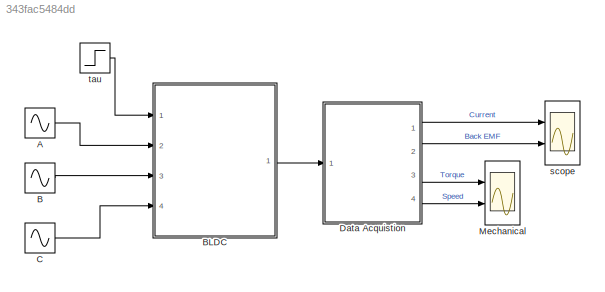
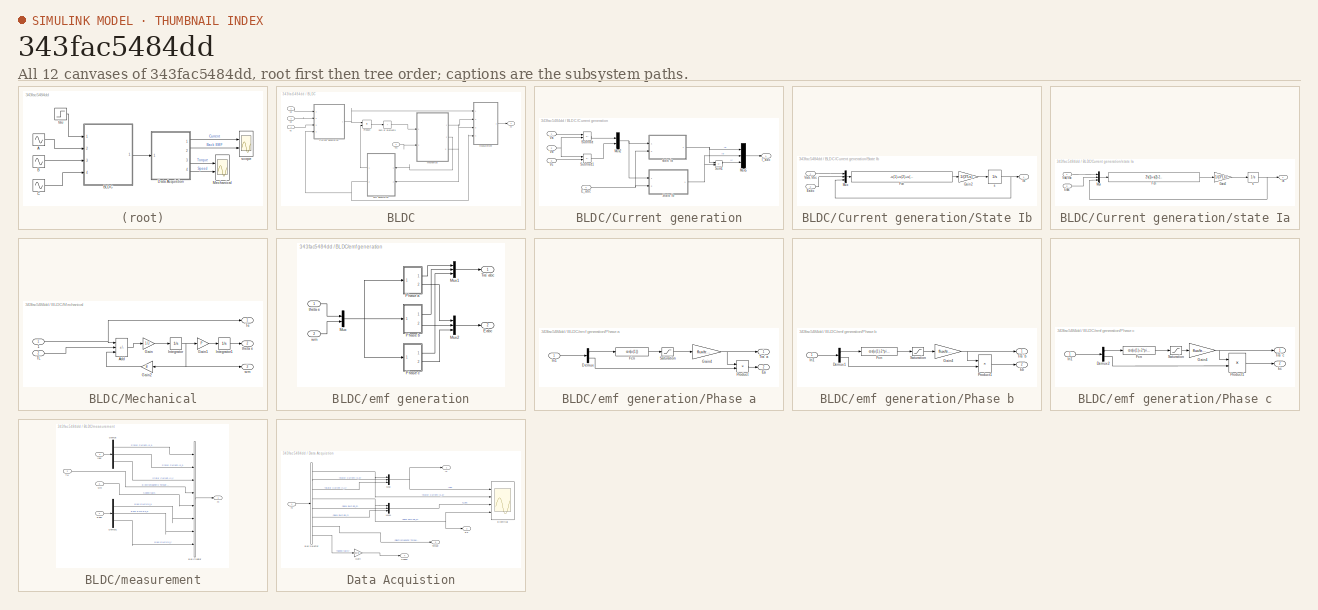
[diagram: thumbnail index - all 12 canvases of the model, root first then tree order]
MODEL slx_343fac5484dd
KIND model
CONFIG AbsTol = auto
CONFIG EnableMultiTasking = off
CONFIG FixedStep = auto
CONFIG MaxStep = auto
CONFIG MinStep = auto
CONFIG RelTol = 1e-3
CONFIG SampleTimeConstraint = Unconstrained
CONFIG SolverName = VariableStepAuto
CONFIG StartTime = 0.0
CONFIG StopTime = 1
WORKSPACE source: mxarray member
WORKSPACE Ts: Simulink.Parameter (value not decoded)
WORKSPACE flux: Simulink.Parameter (value not decoded)
WORKSPACE trap: Simulink.Parameter (value not decoded)
BLOCK [Sin] A
  Amplitude = 220*sqrt(2)
  Frequency = 2*pi*50
  Ports = [0, 1]
  SampleTime = Ts
BLOCK [Sin] B
  Amplitude = 220*sqrt(2)
  Frequency = 2*pi*50
  Phase = -2*pi/3
  Ports = [0, 1]
  SampleTime = Ts
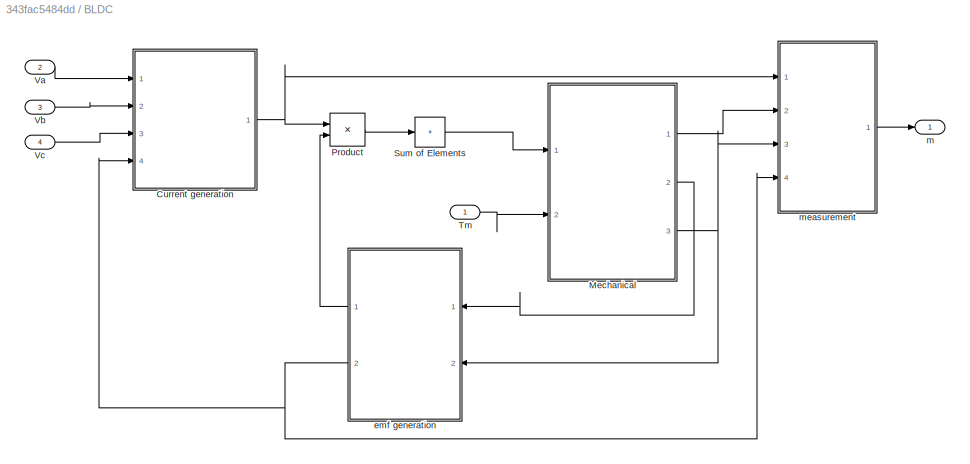
BLOCK [SubSystem] BLDC
  Ports = [4, 1]
  RequestExecContextInheritance = off
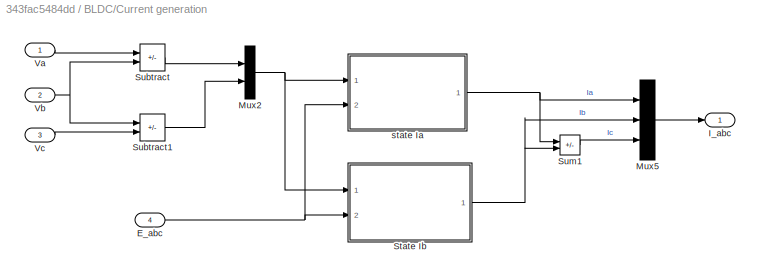
BLOCK [SubSystem] BLDC/Current generation
  Ports = [4, 1]
  RequestExecContextInheritance = off
BLOCK [Inport] BLDC/Current generation/E_abc
  Port = 4
BLOCK [Outport] BLDC/Current generation/I_abc
BLOCK [Mux] BLDC/Current generation/Mux2
  DisplayOption = bar
  Inputs = 2
  Ports = [2, 1]
BLOCK [Mux] BLDC/Current generation/Mux5
  DisplayOption = bar
  Inputs = 3
  Ports = [3, 1]
BLOCK [SubSystem] BLDC/Current generation/State Ib
  Ports = [2, 1]
  RequestExecContextInheritance = off
BLOCK [Inport] BLDC/Current generation/State Ib/Eabc
  Port = 2
BLOCK [Fcn] BLDC/Current generation/State Ib/Fcn
  Expr = -u(1)+u(2)+u(3)-2*u(4)+u(5)-3*Rs*u(6)
BLOCK [Gain] BLDC/Current generation/State Ib/Gain2
  Gain = 1/(3*Ls)
  OutDataTypeStr = Inherit: Same as input
  ParamDataTypeStr = Inherit: Same as input
  SaturateOnIntegerOverflow = on
BLOCK [Outport] BLDC/Current generation/State Ib/Ib
BLOCK [Mux] BLDC/Current generation/State Ib/Mux
  DisplayOption = bar
  Inputs = 3
  Ports = [3, 1]
BLOCK [Inport] BLDC/Current generation/State Ib/Vab,Vbc
BLOCK [Integrator] BLDC/Current generation/State Ib/s 
  Ports = [1, 1]
BLOCK [Sum] BLDC/Current generation/Subtract
  IconShape = rectangular
  Inputs = +-
  Ports = [2, 1]
BLOCK [Sum] BLDC/Current generation/Subtract1
  IconShape = rectangular
  Inputs = +-
  Ports = [2, 1]
BLOCK [Sum] BLDC/Current generation/Sum1
  IconShape = rectangular
  Inputs = --
  Ports = [2, 1]
  SaturateOnIntegerOverflow = on
BLOCK [Inport] BLDC/Current generation/Va
BLOCK [Inport] BLDC/Current generation/Vb
  Port = 2
BLOCK [Inport] BLDC/Current generation/Vc
  Port = 3
BLOCK [SubSystem] BLDC/Current generation/state Ia
  Ports = [2, 1]
  RequestExecContextInheritance = off
BLOCK [Inport] BLDC/Current generation/state Ia/Eabc
  Port = 2
BLOCK [Fcn] BLDC/Current generation/state Ia/Fcn
  Expr = 2*u(1)+u(2)-2*u(3)+u(4)+u(5)-3*Rs*u(6)
BLOCK [Gain] BLDC/Current generation/state Ia/Gain2
  Gain = 1/(3*Ls)
  OutDataTypeStr = Inherit: Same as input
  ParamDataTypeStr = Inherit: Same as input
  SaturateOnIntegerOverflow = on
BLOCK [Outport] BLDC/Current generation/state Ia/Ia
BLOCK [Mux] BLDC/Current generation/state Ia/Mux
  DisplayOption = bar
  Inputs = 3
  Ports = [3, 1]
BLOCK [Inport] BLDC/Current generation/state Ia/Vab,Vbc
BLOCK [Integrator] BLDC/Current generation/state Ia/s 
  Ports = [1, 1]
BLOCK [SubSystem] BLDC/Mechanical
  Ports = [2, 3]
  RequestExecContextInheritance = off
BLOCK [Inport] BLDC/Mechanical/1
BLOCK [Sum] BLDC/Mechanical/Add
  IconShape = rectangular
  Inputs = +--
  Ports = [3, 1]
BLOCK [Gain] BLDC/Mechanical/Gain
  Gain = 1/J
BLOCK [Gain] BLDC/Mechanical/Gain1
  Gain = P
BLOCK [Gain] BLDC/Mechanical/Gain2
  Gain = B
  NameLocation = top
BLOCK [Integrator] BLDC/Mechanical/Integrator
  Ports = [1, 1]
BLOCK [Integrator] BLDC/Mechanical/Integrator1
  Ports = [1, 1]
BLOCK [Inport] BLDC/Mechanical/TL
  Port = 2
BLOCK [Outport] BLDC/Mechanical/Te
BLOCK [Outport] BLDC/Mechanical/theta e
  Port = 2
BLOCK [Outport] BLDC/Mechanical/wm
  Port = 3
BLOCK [Product] BLDC/Product
  OutDataTypeStr = Inherit: Same as first input
  Ports = [2, 1]
  SaturateOnIntegerOverflow = on
BLOCK [Sum] BLDC/Sum of Elements
  IconShape = rectangular
  Inputs = +
  Ports = [1, 1]
BLOCK [Inport] BLDC/Tm
BLOCK [Inport] BLDC/Va
  Port = 2
BLOCK [Inport] BLDC/Vb
  Port = 3
BLOCK [Inport] BLDC/Vc
  Port = 4
BLOCK [SubSystem] BLDC/emf generation
  Ports = [2, 2]
  RequestExecContextInheritance = off
BLOCK [Outport] BLDC/emf generation/Eabc
  Port = 2
BLOCK [Mux] BLDC/emf generation/Mux
  DisplayOption = bar
  Inputs = 2
  Ports = [2, 1]
BLOCK [Mux] BLDC/emf generation/Mux1
  DisplayOption = bar
  Inputs = 3
  Ports = [3, 1]
BLOCK [Mux] BLDC/emf generation/Mux2
  DisplayOption = bar
  Inputs = 3
  Ports = [3, 1]
BLOCK [SubSystem] BLDC/emf generation/Phase a
  Ports = [1, 2]
  RequestExecContextInheritance = off
BLOCK [Demux] BLDC/emf generation/Phase a/Demux
  Outputs = 2
  Ports = [1, 2]
BLOCK [Outport] BLDC/emf generation/Phase a/Ea
  Port = 2
BLOCK [Fcn] BLDC/emf generation/Phase a/Fcn
  Expr = cos(u(1))
BLOCK [Gain] BLDC/emf generation/Phase a/Gain4
  Gain = flux/trap
  OutDataTypeStr = Inherit: Same as input
  ParamDataTypeStr = Inherit: Same as input
  SaturateOnIntegerOverflow = on
BLOCK [Inport] BLDC/emf generation/Phase a/In1
BLOCK [Product] BLDC/emf generation/Phase a/Product
  Ports = [2, 1]
BLOCK [Saturate] BLDC/emf generation/Phase a/Saturation
  LowerLimit = -trap
  UpperLimit = trap
BLOCK [Outport] BLDC/emf generation/Phase a/Tra' a
BLOCK [SubSystem] BLDC/emf generation/Phase b
  Ports = [1, 2]
  RequestExecContextInheritance = off
BLOCK [Demux] BLDC/emf generation/Phase b/Demux1
  Outputs = 2
  Ports = [1, 2]
BLOCK [Outport] BLDC/emf generation/Phase b/Eb
  Port = 2
BLOCK [Fcn] BLDC/emf generation/Phase b/Fcn
  Expr = cos(u(1)-2*pi/3)
BLOCK [Gain] BLDC/emf generation/Phase b/Gain4
  Gain = flux/trap
  OutDataTypeStr = Inherit: Same as input
  ParamDataTypeStr = Inherit: Same as input
  SaturateOnIntegerOverflow = on
BLOCK [Inport] BLDC/emf generation/Phase b/In1
BLOCK [Product] BLDC/emf generation/Phase b/Product1
  OutDataTypeStr = Inherit: Same as first input
  Ports = [2, 1]
  SaturateOnIntegerOverflow = on
BLOCK [Saturate] BLDC/emf generation/Phase b/Saturation
  LowerLimit = -trap
  UpperLimit = trap
BLOCK [Outport] BLDC/emf generation/Phase b/Tra' b
BLOCK [SubSystem] BLDC/emf generation/Phase c
  Ports = [1, 2]
  RequestExecContextInheritance = off
BLOCK [Demux] BLDC/emf generation/Phase c/Demux2
  Outputs = 2
  Ports = [1, 2]
BLOCK [Outport] BLDC/emf generation/Phase c/Ec
  Port = 2
BLOCK [Fcn] BLDC/emf generation/Phase c/Fcn
  Expr = cos(u(1)+2*pi/3)
BLOCK [Gain] BLDC/emf generation/Phase c/Gain4
  Gain = flux/trap
  OutDataTypeStr = Inherit: Same as input
  ParamDataTypeStr = Inherit: Same as input
  SaturateOnIntegerOverflow = on
BLOCK [Inport] BLDC/emf generation/Phase c/In1
BLOCK [Product] BLDC/emf generation/Phase c/Product1
  OutDataTypeStr = Inherit: Same as first input
  Ports = [2, 1]
  SaturateOnIntegerOverflow = on
BLOCK [Saturate] BLDC/emf generation/Phase c/Saturation
  LowerLimit = -trap
  UpperLimit = trap
BLOCK [Outport] BLDC/emf generation/Phase c/Tra' c
BLOCK [Outport] BLDC/emf generation/Tra' abc
BLOCK [Inport] BLDC/emf generation/theta e
BLOCK [Inport] BLDC/emf generation/wm
  Port = 2
BLOCK [Outport] BLDC/m
BLOCK [SubSystem] BLDC/measurement
  Ports = [4, 1]
  RequestExecContextInheritance = off
BLOCK [BusCreator] BLDC/measurement/Bus Creator
  DisplayOption = bar
  InheritFromInputs = on
  Inputs = 8
  Ports = [8, 1]
BLOCK [Demux] BLDC/measurement/Demux
  Outputs = 3
  Ports = [1, 3]
BLOCK [Demux] BLDC/measurement/Demux1
  Outputs = 3
  Ports = [1, 3]
BLOCK [Inport] BLDC/measurement/Eabc
  Port = 4
BLOCK [Inport] BLDC/measurement/Iabc
BLOCK [Inport] BLDC/measurement/Te
  Port = 2
BLOCK [Outport] BLDC/measurement/m
BLOCK [Inport] BLDC/measurement/wm
  Port = 3
BLOCK [Sin] C
  Amplitude = 220*sqrt(2)
  Frequency = 2*pi*50
  Phase = 2*pi/3
  Ports = [0, 1]
  SampleTime = Ts
BLOCK [SubSystem] Data Acquistion
  Ports = [1, 4]
  RequestExecContextInheritance = off
BLOCK [BusSelector] Data Acquistion/Bus Selector
  OutputSignals = Stator Current-Is_a,Stator Current-Is_b,Stator Current-Is_c,Back EMF-Eb_a,Back EMF-Eb_b,Back EMF-Eb_c,Electromagnetic Torque-Nm,Speed-rad/s
  Ports = [1, 8]
BLOCK [Outport] Data Acquistion/Eb
  Port = 2
BLOCK [Scope] Data Acquistion/Electrical
  Floating = off
  NumInputPorts = 4
  Ports = [4]
  ScopeSpecificationString = Simulink.scopes.TimeScopeBlockCfg('CurrentConfiguration', extmgr.ConfigurationSet(extmgr.Configuration('Core','General UI',true),extmgr.Configuration('Core','Source UI',true),extmgr.Configuration('Sources','WiredSimulink',true,'DataLoggingVariableName','ScopeData3','DataLoggingSaveFormat','StructureWithTime','DataLoggingDecimation','1','DataLoggingDecimateData',true),extmgr.Configuration('Visuals'...<+3714ch>
BLOCK [Gain] Data Acquistion/Gain
  Gain = 30/pi
BLOCK [Outport] Data Acquistion/Is
BLOCK [Mux] Data Acquistion/Mux
  DisplayOption = bar
  Inputs = 3
  Ports = [3, 1]
BLOCK [Mux] Data Acquistion/Mux1
  DisplayOption = bar
  Inputs = 3
  Ports = [3, 1]
BLOCK [Outport] Data Acquistion/Speed
  Port = 4
BLOCK [Outport] Data Acquistion/Torque
  Port = 3
BLOCK [Inport] Data Acquistion/m
BLOCK [Scope] Mechanical
  Floating = off
  NumInputPorts = 2
  Ports = [2]
  ScopeSpecificationString = Simulink.scopes.TimeScopeBlockCfg('CurrentConfiguration', extmgr.ConfigurationSet(extmgr.Configuration('Core','General UI',true),extmgr.Configuration('Core','Source UI',true),extmgr.Configuration('Sources','WiredSimulink',true,'DataLoggingVariableName','ScopeData1','DataLoggingSaveFormat','StructureWithTime','DataLoggingDecimation','1','DataLoggingDecimateData',true),extmgr.Configuration('Visuals'...<+2321ch>
BLOCK [Scope] scope
  Floating = off
  NumInputPorts = 2
  Ports = [2]
  ScopeSpecificationString = Simulink.scopes.TimeScopeBlockCfg('CurrentConfiguration', extmgr.ConfigurationSet(extmgr.Configuration('Core','General UI',true),extmgr.Configuration('Core','Source UI',true),extmgr.Configuration('Sources','WiredSimulink',true,'DataLoggingSaveFormat','StructureWithTime','DataLoggingDecimation','1','DataLoggingDecimateData',true,'DataLoggingVariableName','ScopeData2'),extmgr.Configuration('Visuals'...<+2360ch>
BLOCK [Step] tau
  After = 10
  SampleTime = 0
  Time = 0.5
LINE A:1 -> BLDC:2
LINE B:1 -> BLDC:3
NET BLDC/Current generation/E_abc:1 -> BLDC/Current generation/State Ib:2, BLDC/Current generation/state Ia:2
NET BLDC/Current generation/Mux2:1 -> BLDC/Current generation/State Ib:1, BLDC/Current generation/state Ia:1
LINE BLDC/Current generation/Mux5:1 -> BLDC/Current generation/I_abc:1
LINE BLDC/Current generation/State Ib/Eabc:1 -> BLDC/Current generation/State Ib/Mux:2
LINE BLDC/Current generation/State Ib/Fcn:1 -> BLDC/Current generation/State Ib/Gain2:1
LINE BLDC/Current generation/State Ib/Gain2:1 -> BLDC/Current generation/State Ib/s :1
LINE BLDC/Current generation/State Ib/Mux:1 -> BLDC/Current generation/State Ib/Fcn:1
LINE BLDC/Current generation/State Ib/Vab,Vbc:1 -> BLDC/Current generation/State Ib/Mux:1
NET BLDC/Current generation/State Ib/s :1 -> BLDC/Current generation/State Ib/Ib:1, BLDC/Current generation/State Ib/Mux:3
NET BLDC/Current generation/State Ib:1 -> BLDC/Current generation/Mux5:2, BLDC/Current generation/Sum1:2
LINE BLDC/Current generation/Subtract1:1 -> BLDC/Current generation/Mux2:2
LINE BLDC/Current generation/Subtract:1 -> BLDC/Current generation/Mux2:1
LINE BLDC/Current generation/Sum1:1 -> BLDC/Current generation/Mux5:3
LINE BLDC/Current generation/Va:1 -> BLDC/Current generation/Subtract:1
NET BLDC/Current generation/Vb:1 -> BLDC/Current generation/Subtract1:1, BLDC/Current generation/Subtract:2
LINE BLDC/Current generation/Vc:1 -> BLDC/Current generation/Subtract1:2
LINE BLDC/Current generation/state Ia/Eabc:1 -> BLDC/Current generation/state Ia/Mux:2
LINE BLDC/Current generation/state Ia/Fcn:1 -> BLDC/Current generation/state Ia/Gain2:1
LINE BLDC/Current generation/state Ia/Gain2:1 -> BLDC/Current generation/state Ia/s :1
LINE BLDC/Current generation/state Ia/Mux:1 -> BLDC/Current generation/state Ia/Fcn:1
LINE BLDC/Current generation/state Ia/Vab,Vbc:1 -> BLDC/Current generation/state Ia/Mux:1
NET BLDC/Current generation/state Ia/s :1 -> BLDC/Current generation/state Ia/Ia:1, BLDC/Current generation/state Ia/Mux:3
NET BLDC/Current generation/state Ia:1 -> BLDC/Current generation/Mux5:1, BLDC/Current generation/Sum1:1
NET BLDC/Current generation:1 -> BLDC/Product:1, BLDC/measurement:1
NET BLDC/Mechanical/1:1 -> BLDC/Mechanical/Add:1, BLDC/Mechanical/Te:1
LINE BLDC/Mechanical/Add:1 -> BLDC/Mechanical/Gain:1
LINE BLDC/Mechanical/Gain1:1 -> BLDC/Mechanical/Integrator1:1
LINE BLDC/Mechanical/Gain2:1 -> BLDC/Mechanical/Add:3
LINE BLDC/Mechanical/Gain:1 -> BLDC/Mechanical/Integrator:1
LINE BLDC/Mechanical/Integrator1:1 -> BLDC/Mechanical/theta e:1
NET BLDC/Mechanical/Integrator:1 -> BLDC/Mechanical/Gain1:1, BLDC/Mechanical/Gain2:1, BLDC/Mechanical/wm:1
LINE BLDC/Mechanical/TL:1 -> BLDC/Mechanical/Add:2
LINE BLDC/Mechanical:1 -> BLDC/measurement:2
LINE BLDC/Mechanical:2 -> BLDC/emf generation:1
NET BLDC/Mechanical:3 -> BLDC/emf generation:2, BLDC/measurement:3
LINE BLDC/Product:1 -> BLDC/Sum of Elements:1
LINE BLDC/Sum of Elements:1 -> BLDC/Mechanical:1
LINE BLDC/Tm:1 -> BLDC/Mechanical:2
LINE BLDC/Va:1 -> BLDC/Current generation:1
LINE BLDC/Vb:1 -> BLDC/Current generation:2
LINE BLDC/Vc:1 -> BLDC/Current generation:3
LINE BLDC/emf generation/Mux1:1 -> BLDC/emf generation/Tra' abc:1
LINE BLDC/emf generation/Mux2:1 -> BLDC/emf generation/Eabc:1
NET BLDC/emf generation/Mux:1 -> BLDC/emf generation/Phase a:1, BLDC/emf generation/Phase b:1, BLDC/emf generation/Phase c:1
LINE BLDC/emf generation/Phase a/Demux:1 -> BLDC/emf generation/Phase a/Fcn:1
LINE BLDC/emf generation/Phase a/Demux:2 -> BLDC/emf generation/Phase a/Product:2
LINE BLDC/emf generation/Phase a/Fcn:1 -> BLDC/emf generation/Phase a/Saturation:1
NET BLDC/emf generation/Phase a/Gain4:1 -> BLDC/emf generation/Phase a/Product:1, BLDC/emf generation/Phase a/Tra' a:1
LINE BLDC/emf generation/Phase a/In1:1 -> BLDC/emf generation/Phase a/Demux:1
LINE BLDC/emf generation/Phase a/Product:1 -> BLDC/emf generation/Phase a/Ea:1
LINE BLDC/emf generation/Phase a/Saturation:1 -> BLDC/emf generation/Phase a/Gain4:1
LINE BLDC/emf generation/Phase a:1 -> BLDC/emf generation/Mux1:1
LINE BLDC/emf generation/Phase a:2 -> BLDC/emf generation/Mux2:1
LINE BLDC/emf generation/Phase b/Demux1:1 -> BLDC/emf generation/Phase b/Fcn:1
LINE BLDC/emf generation/Phase b/Demux1:2 -> BLDC/emf generation/Phase b/Product1:2
LINE BLDC/emf generation/Phase b/Fcn:1 -> BLDC/emf generation/Phase b/Saturation:1
NET BLDC/emf generation/Phase b/Gain4:1 -> BLDC/emf generation/Phase b/Product1:1, BLDC/emf generation/Phase b/Tra' b:1
LINE BLDC/emf generation/Phase b/In1:1 -> BLDC/emf generation/Phase b/Demux1:1
LINE BLDC/emf generation/Phase b/Product1:1 -> BLDC/emf generation/Phase b/Eb:1
LINE BLDC/emf generation/Phase b/Saturation:1 -> BLDC/emf generation/Phase b/Gain4:1
LINE BLDC/emf generation/Phase b:1 -> BLDC/emf generation/Mux1:2
LINE BLDC/emf generation/Phase b:2 -> BLDC/emf generation/Mux2:2
LINE BLDC/emf generation/Phase c/Demux2:1 -> BLDC/emf generation/Phase c/Fcn:1
LINE BLDC/emf generation/Phase c/Demux2:2 -> BLDC/emf generation/Phase c/Product1:2
LINE BLDC/emf generation/Phase c/Fcn:1 -> BLDC/emf generation/Phase c/Saturation:1
NET BLDC/emf generation/Phase c/Gain4:1 -> BLDC/emf generation/Phase c/Product1:1, BLDC/emf generation/Phase c/Tra' c:1
LINE BLDC/emf generation/Phase c/In1:1 -> BLDC/emf generation/Phase c/Demux2:1
LINE BLDC/emf generation/Phase c/Product1:1 -> BLDC/emf generation/Phase c/Ec:1
LINE BLDC/emf generation/Phase c/Saturation:1 -> BLDC/emf generation/Phase c/Gain4:1
LINE BLDC/emf generation/Phase c:1 -> BLDC/emf generation/Mux1:3
LINE BLDC/emf generation/Phase c:2 -> BLDC/emf generation/Mux2:3
LINE BLDC/emf generation/theta e:1 -> BLDC/emf generation/Mux:1
LINE BLDC/emf generation/wm:1 -> BLDC/emf generation/Mux:2
LINE BLDC/emf generation:1 -> BLDC/Product:2
NET BLDC/emf generation:2 -> BLDC/Current generation:4, BLDC/measurement:4
LINE BLDC/measurement/Bus Creator:1 -> BLDC/measurement/m:1
LINE BLDC/measurement/Demux1:1 -> BLDC/measurement/Bus Creator:6
LINE BLDC/measurement/Demux1:2 -> BLDC/measurement/Bus Creator:7
LINE BLDC/measurement/Demux1:3 -> BLDC/measurement/Bus Creator:8
LINE BLDC/measurement/Demux:1 -> BLDC/measurement/Bus Creator:1
LINE BLDC/measurement/Demux:2 -> BLDC/measurement/Bus Creator:2
LINE BLDC/measurement/Demux:3 -> BLDC/measurement/Bus Creator:3
LINE BLDC/measurement/Eabc:1 -> BLDC/measurement/Demux1:1
LINE BLDC/measurement/Iabc:1 -> BLDC/measurement/Demux:1
LINE BLDC/measurement/Te:1 -> BLDC/measurement/Bus Creator:4
LINE BLDC/measurement/wm:1 -> BLDC/measurement/Bus Creator:5
LINE BLDC/measurement:1 -> BLDC/m:1
LINE BLDC:1 -> Data Acquistion:1
LINE C:1 -> BLDC:4
NET Data Acquistion/Bus Selector:1 -> Data Acquistion/Electrical:2, Data Acquistion/Mux:1
LINE Data Acquistion/Bus Selector:2 -> Data Acquistion/Mux:2
LINE Data Acquistion/Bus Selector:3 -> Data Acquistion/Mux:3
NET Data Acquistion/Bus Selector:4 -> Data Acquistion/Eb:1, Data Acquistion/Electrical:4, Data Acquistion/Mux1:1
LINE Data Acquistion/Bus Selector:5 -> Data Acquistion/Mux1:2
LINE Data Acquistion/Bus Selector:6 -> Data Acquistion/Mux1:3
LINE Data Acquistion/Bus Selector:7 -> Data Acquistion/Torque:1
LINE Data Acquistion/Bus Selector:8 -> Data Acquistion/Gain:1
LINE Data Acquistion/Gain:1 -> Data Acquistion/Speed:1
LINE Data Acquistion/Mux1:1 -> Data Acquistion/Electrical:3
NET Data Acquistion/Mux:1 -> Data Acquistion/Electrical:1, Data Acquistion/Is:1
LINE Data Acquistion/m:1 -> Data Acquistion/Bus Selector:1
LINE Data Acquistion:1 -> scope:1
LINE Data Acquistion:2 -> scope:2
LINE Data Acquistion:3 -> Mechanical:1
LINE Data Acquistion:4 -> Mechanical:2
LINE tau:1 -> BLDC:1
note: NET lines group one-source signal fan-out (src -> all destinations, sorted); 1:1 wires keep LINE
